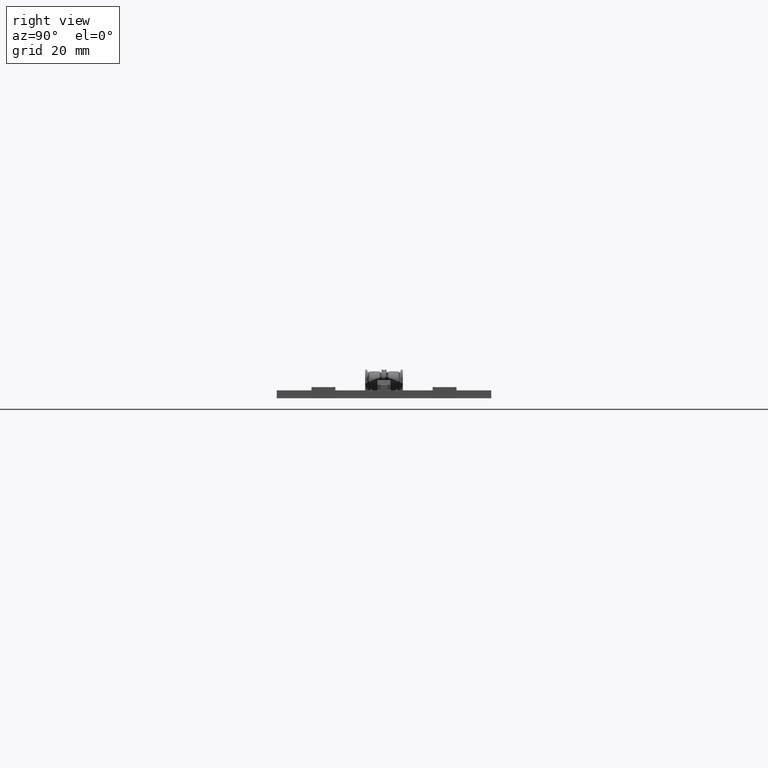
[diagram: clean part render]
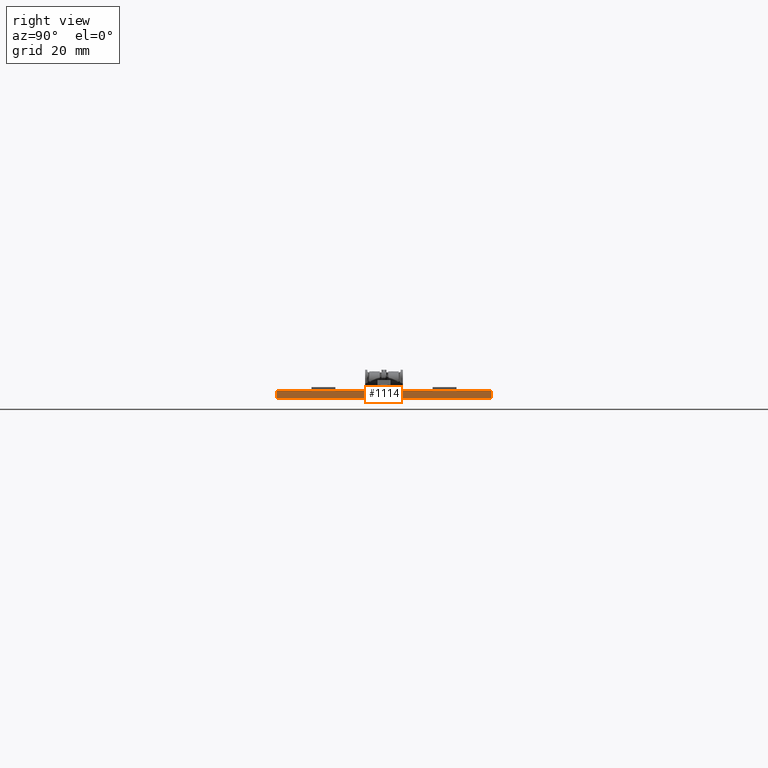
[diagram: same view with one face highlighted and labeled with its STEP entity id]
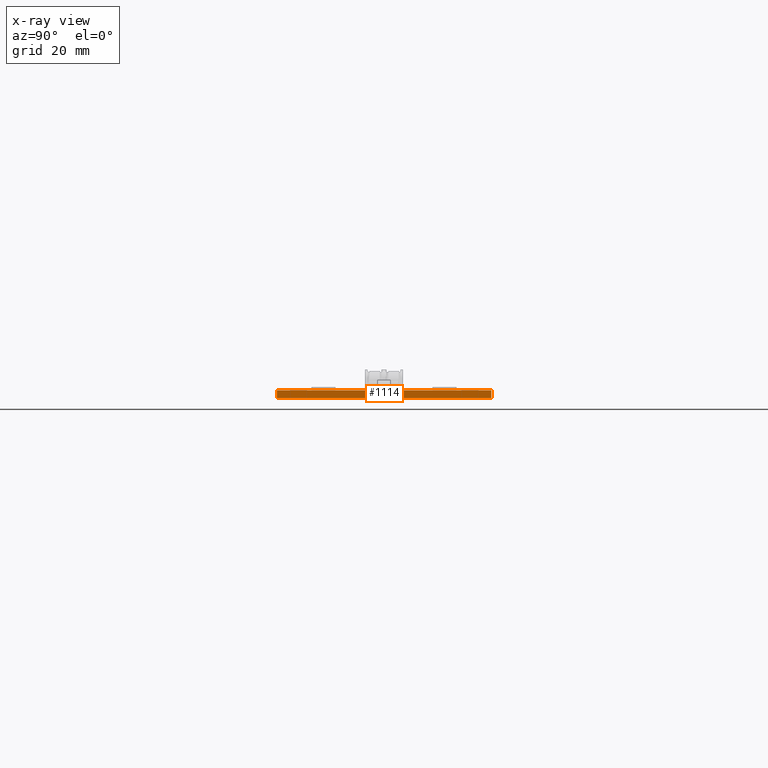
[diagram: x-ray of the same camera — body ghosted, the highlighted face saturated]
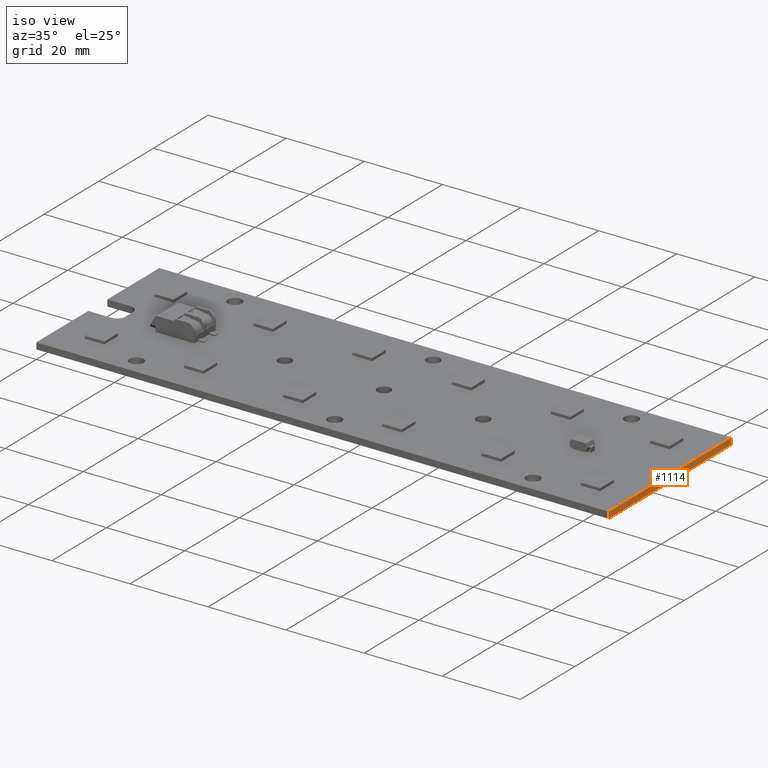
[diagram: same view with one face highlighted and labeled with its STEP entity id]
A machine part, right view. The second image highlights one B-rep face of the part: STEP entity #1114.
The next image is the same camera in x-ray: the body ghosted, the highlighted face saturated — about 0% of this face is hidden behind the body in this view.
A second angle (iso view) of the same face is appended — the face is thin or edge-on in the first view.
In plain terms, the highlighted planar face has unit normal (1, 0, 0).
Its self-contained STEP definition (entity closure, byte-faithful):
#1114=ADVANCED_FACE('',(#1550),#1380,.T.);
#1380=PLANE('',#5799);
#1550=FACE_OUTER_BOUND('',#1800,.T.);
#1800=EDGE_LOOP('',(#2102,#2103,#2104,#2105));
#2102=ORIENTED_EDGE('',*,*,#4038,.F.);
#2103=ORIENTED_EDGE('',*,*,#4037,.F.);
#2104=ORIENTED_EDGE('',*,*,#4039,.T.);
#2105=ORIENTED_EDGE('',*,*,#4040,.T.);
#3549=VERTEX_POINT('',#7696);
#3551=VERTEX_POINT('',#7700);
#3552=VERTEX_POINT('',#7704);
#3553=VERTEX_POINT('',#7706);
#4037=EDGE_CURVE('',#3551,#3549,#4762,.T.);
#4038=EDGE_CURVE('',#3549,#3552,#4763,.T.);
#4039=EDGE_CURVE('',#3551,#3553,#4764,.T.);
#4040=EDGE_CURVE('',#3553,#3552,#4765,.T.);
#4762=LINE('',#7701,#5281);
#4763=LINE('',#7703,#5282);
#4764=LINE('',#7705,#5283);
#4765=LINE('',#7707,#5284);
#5281=VECTOR('',#6261,1.);
#5282=VECTOR('',#6264,1.);
#5283=VECTOR('',#6265,1.);
#5284=VECTOR('',#6266,1.);
#5799=AXIS2_PLACEMENT_3D('',#7708,#6267,#6268);
#6261=DIRECTION('',(0.,0.,1.));
#6264=DIRECTION('',(0.,1.,0.));
#6265=DIRECTION('',(0.,1.,0.));
#6266=DIRECTION('',(0.,0.,1.));
#6267=DIRECTION('',(1.,0.,0.));
#6268=DIRECTION('',(0.,0.,-1.));
#7696=CARTESIAN_POINT('',(146.6,0.,0.));
#7700=CARTESIAN_POINT('',(146.6,0.,-1.65));
#7701=CARTESIAN_POINT('',(146.6,0.,-1.65));
#7703=CARTESIAN_POINT('',(146.6,0.,0.));
#7704=CARTESIAN_POINT('',(146.6,45.,0.));
#7705=CARTESIAN_POINT('',(146.6,0.,-1.65));
#7706=CARTESIAN_POINT('',(146.6,45.,-1.65));
#7707=CARTESIAN_POINT('',(146.6,45.,-1.65));
#7708=CARTESIAN_POINT('',(146.6,0.,-1.65));